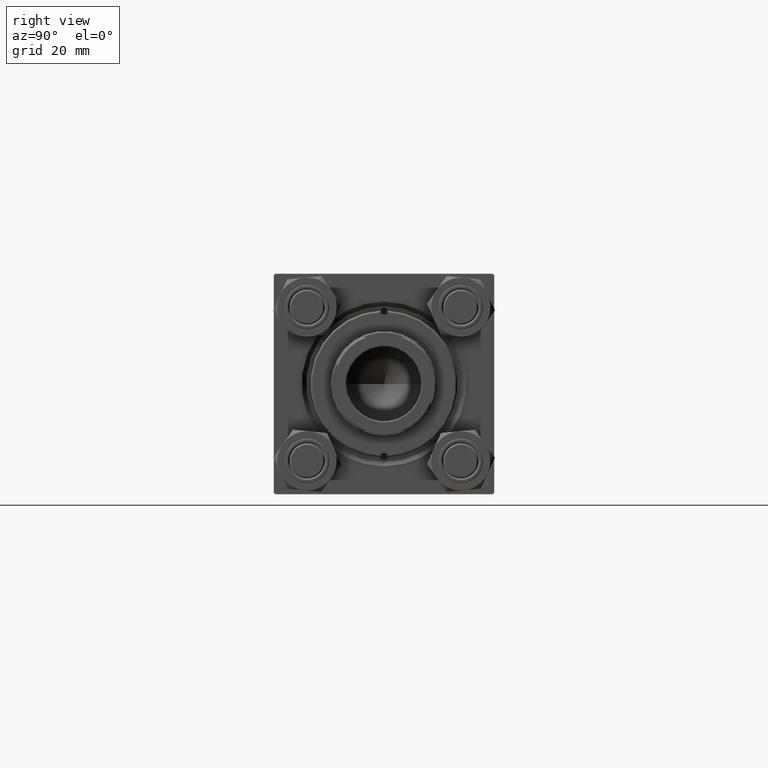
[diagram: clean part render]
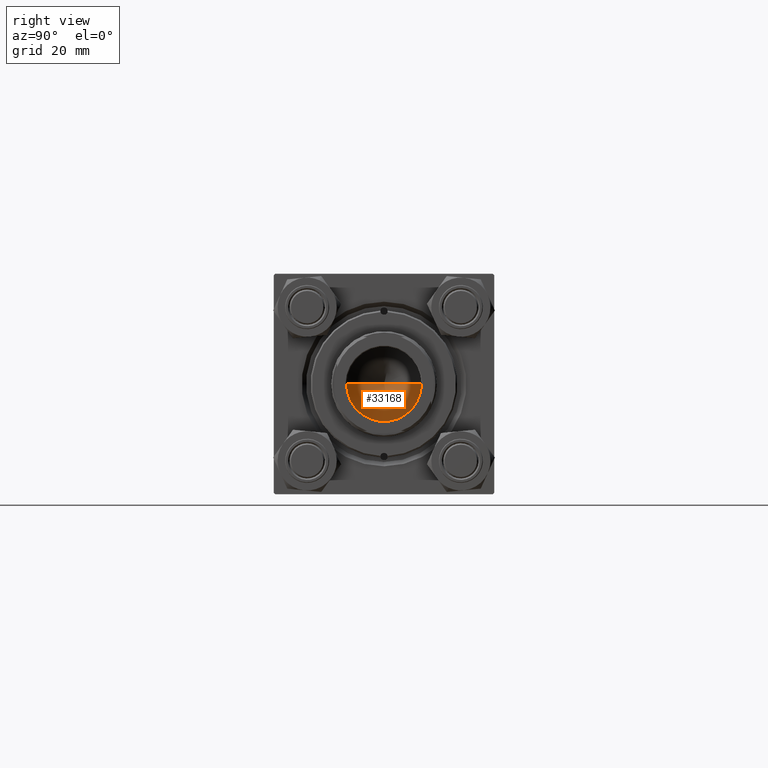
[diagram: same view with one face highlighted and labeled with its STEP entity id]
A machine part, right view. The second image highlights one B-rep face of the part: STEP entity #33168.
In plain terms, the highlighted conical surface has half-angle 59 deg.
Its self-contained STEP definition (entity closure, byte-faithful):
#1662 = FACE_OUTER_BOUND ( 'NONE', #12442, .T. ) ;
#2159 = VECTOR ( 'NONE', #45374, 1000.000000000000000 ) ;
#3507 = AXIS2_PLACEMENT_3D ( 'NONE', #8498, #11540, #23944 ) ;
#5041 = CARTESIAN_POINT ( 'NONE',  ( 12.74999999999998934, 0.000000000000000000, 97.00000000000001421 ) ) ;
#8230 = LINE ( 'NONE', #27702, #19121 ) ;
#8498 = CARTESIAN_POINT ( 'NONE',  ( 0.000000000000000000, 0.000000000000000000, 97.00000000000001421 ) ) ;
#10321 = VERTEX_POINT ( 'NONE', #34731 ) ;
#11540 = DIRECTION ( 'NONE',  ( -0.000000000000000000, -0.000000000000000000, 1.000000000000000000 ) ) ;
#12442 = EDGE_LOOP ( 'NONE', ( #27901, #36868, #16790 ) ) ;
#16790 = ORIENTED_EDGE ( 'NONE', *, *, #29560, .T. ) ;
#19121 = VECTOR ( 'NONE', #38822, 1000.000000000000000 ) ;
#21624 = DIRECTION ( 'NONE',  ( -0.000000000000000000, -0.000000000000000000, 1.000000000000000000 ) ) ;
#21674 = CARTESIAN_POINT ( 'NONE',  ( -12.74999999999998934, 1.561424668912873928E-15, 97.00000000000001421 ) ) ;
#22133 = CONICAL_SURFACE ( 'NONE', #27757, 12.74999999999998934, 1.029744258676653423 ) ;
#23944 = DIRECTION ( 'NONE',  ( 1.000000000000000000, 0.000000000000000000, 0.000000000000000000 ) ) ;
#26684 = CARTESIAN_POINT ( 'NONE',  ( 12.74999999999998934, 0.000000000000000000, 97.00000000000001421 ) ) ;
#26938 = LINE ( 'NONE', #26684, #2159 ) ;
#27702 = CARTESIAN_POINT ( 'NONE',  ( -12.74999999999998934, 1.561424668912873928E-15, 97.00000000000001421 ) ) ;
#27757 = AXIS2_PLACEMENT_3D ( 'NONE', #47893, #21624, #48383 ) ;
#27901 = ORIENTED_EDGE ( 'NONE', *, *, #41439, .F. ) ;
#29560 = EDGE_CURVE ( 'NONE', #38442, #30468, #40634, .T. ) ;
#30468 = VERTEX_POINT ( 'NONE', #21674 ) ;
#33168 = ADVANCED_FACE ( 'NONE', ( #1662 ), #22133, .F. ) ;
#34731 = CARTESIAN_POINT ( 'NONE',  ( -1.410643066818227497E-14, 0.000000000000000000, 89.33902710739862130 ) ) ;
#36868 = ORIENTED_EDGE ( 'NONE', *, *, #44959, .T. ) ;
#38442 = VERTEX_POINT ( 'NONE', #5041 ) ;
#38822 = DIRECTION ( 'NONE',  ( -0.8571673007021117785, 1.049727191138617956E-16, 0.5150380749100550437 ) ) ;
#40634 = CIRCLE ( 'NONE', #3507, 12.74999999999998934 ) ;
#41439 = EDGE_CURVE ( 'NONE', #10321, #30468, #8230, .T. ) ;
#44959 = EDGE_CURVE ( 'NONE', #10321, #38442, #26938, .T. ) ;
#45374 = DIRECTION ( 'NONE',  ( 0.8571673007021117785, 0.000000000000000000, 0.5150380749100550437 ) ) ;
#47893 = CARTESIAN_POINT ( 'NONE',  ( 0.000000000000000000, 0.000000000000000000, 97.00000000000001421 ) ) ;
#48383 = DIRECTION ( 'NONE',  ( 1.000000000000000000, 0.000000000000000000, 0.000000000000000000 ) ) ;